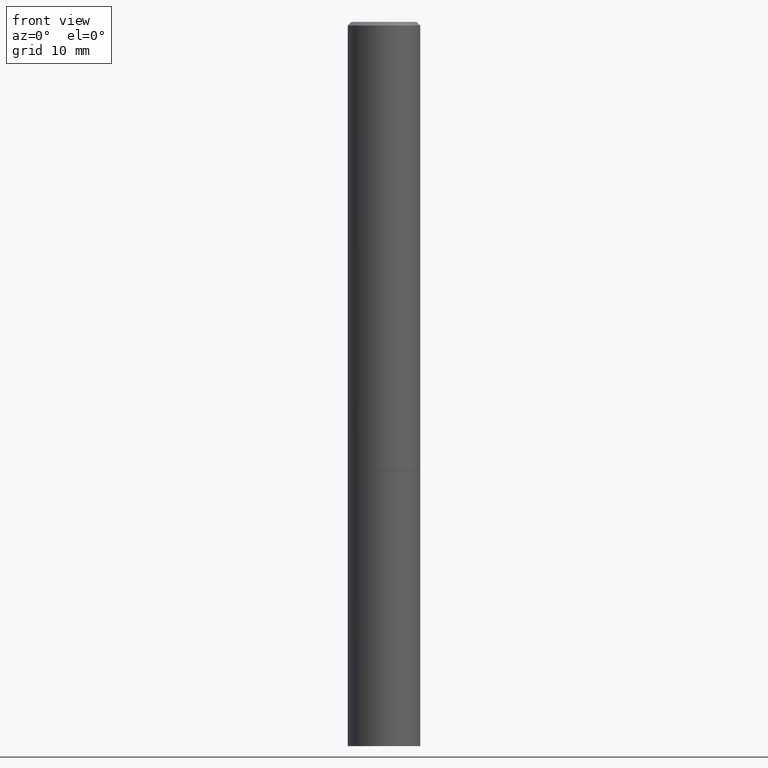
[diagram: clean part render]
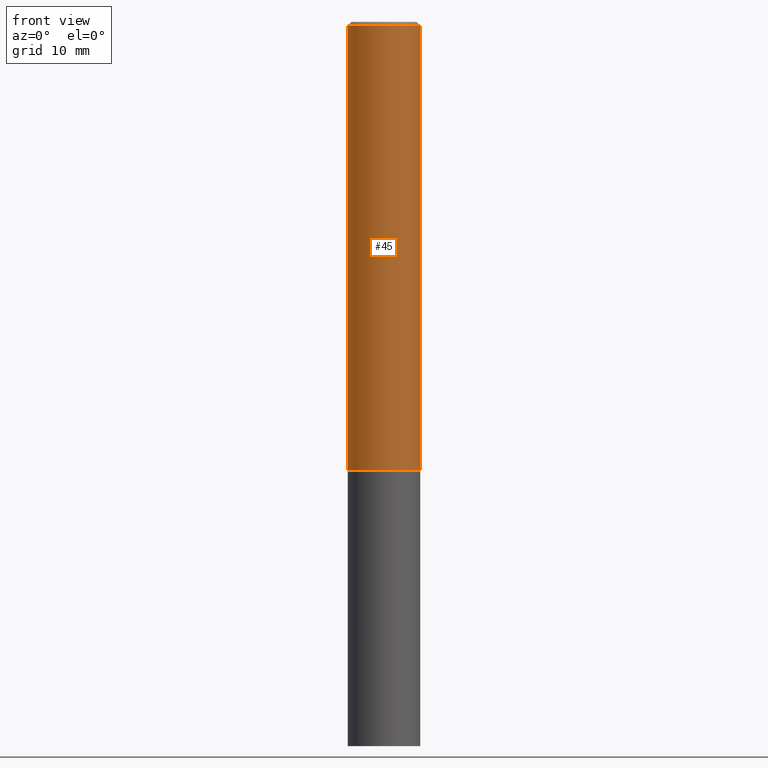
[diagram: same view with one face highlighted and labeled with its STEP entity id]
A machine part, front view. The second image highlights one B-rep face of the part: STEP entity #45.
In plain terms, the highlighted cylindrical surface (edge-blend (fillet) strip) has radius 5 mm, axis along (-0, 0, 1).
Its self-contained STEP definition (entity closure, byte-faithful):
#9 = VERTEX_POINT ( 'NONE', #83 ) ;
#14 = EDGE_CURVE ( 'NONE', #209, #23, #259, .T. ) ;
#23 = VERTEX_POINT ( 'NONE', #361 ) ;
#40 = DIRECTION ( 'NONE',  ( 1.000000000000000000, -6.982962677686266711E-15, 0.000000000000000000 ) ) ;
#43 = DIRECTION ( 'NONE',  ( -2.445468806185136597E-29, 3.491481338843145583E-15, 1.000000000000000000 ) ) ;
#45 = ADVANCED_FACE ( 'NONE', ( #255 ), #194, .T. ) ;
#76 = AXIS2_PLACEMENT_3D ( 'NONE', #229, #311, #278 ) ;
#83 = CARTESIAN_POINT ( 'NONE',  ( 0.1968500000000000527, -9.893461521745931567E-15, -2.439899999999999736 ) ) ;
#89 = LINE ( 'NONE', #147, #225 ) ;
#117 = AXIS2_PLACEMENT_3D ( 'NONE', #299, #43, #277 ) ;
#121 = ORIENTED_EDGE ( 'NONE', *, *, #285, .T. ) ;
#127 = DIRECTION ( 'NONE',  ( -2.445468806185136597E-29, 3.491481338843145583E-15, 1.000000000000000000 ) ) ;
#147 = CARTESIAN_POINT ( 'NONE',  ( 0.1968499999999998307, -1.374596203102540425E-15, 9.598753983154291049E-30 ) ) ;
#151 = ORIENTED_EDGE ( 'NONE', *, *, #226, .T. ) ;
#157 = CARTESIAN_POINT ( 'NONE',  ( 4.890937612370278413E-31, -6.982962677686297772E-17, -0.02000000000000002123 ) ) ;
#170 = ORIENTED_EDGE ( 'NONE', *, *, #334, .F. ) ;
#181 = CIRCLE ( 'NONE', #276, 0.1968499999999996364 ) ;
#190 = VECTOR ( 'NONE', #307, 39.37007874015748143 ) ;
#194 = CYLINDRICAL_SURFACE ( 'NONE', #76, 0.1968499999999998307 ) ;
#209 = VERTEX_POINT ( 'NONE', #318 ) ;
#211 = CARTESIAN_POINT ( 'NONE',  ( 0.1968499999999996364, -1.420318657638186558E-15, -0.02000000000000002123 ) ) ;
#215 = VERTEX_POINT ( 'NONE', #211 ) ;
#217 = ORIENTED_EDGE ( 'NONE', *, *, #14, .F. ) ;
#225 = VECTOR ( 'NONE', #295, 39.37007874015748143 ) ;
#226 = EDGE_CURVE ( 'NONE', #9, #215, #89, .T. ) ;
#229 = CARTESIAN_POINT ( 'NONE',  ( 0.000000000000000000, 0.000000000000000000, 0.000000000000000000 ) ) ;
#251 = CARTESIAN_POINT ( 'NONE',  ( -0.1968499999999998307, 1.398703375343756013E-15, -9.682923725166775270E-30 ) ) ;
#255 = FACE_OUTER_BOUND ( 'NONE', #317, .T. ) ;
#259 = LINE ( 'NONE', #251, #190 ) ;
#276 = AXIS2_PLACEMENT_3D ( 'NONE', #157, #127, #40 ) ;
#277 = DIRECTION ( 'NONE',  ( 1.000000000000000000, -6.982962677686266711E-15, 0.000000000000000000 ) ) ;
#278 = DIRECTION ( 'NONE',  ( 1.000000000000000000, -6.982962677686266711E-15, 4.876176775795935793E-29 ) ) ;
#285 = EDGE_CURVE ( 'NONE', #209, #9, #354, .T. ) ;
#295 = DIRECTION ( 'NONE',  ( -2.445468806185136877E-29, 3.491481338843145188E-15, 1.000000000000000000 ) ) ;
#299 = CARTESIAN_POINT ( 'NONE',  ( 5.966699340211114556E-29, -8.518865318643389958E-15, -2.439899999999999736 ) ) ;
#307 = DIRECTION ( 'NONE',  ( -2.445468806185136877E-29, 3.491481338843145188E-15, 1.000000000000000000 ) ) ;
#311 = DIRECTION ( 'NONE',  ( -2.445468806185136597E-29, 3.491481338843145583E-15, 1.000000000000000000 ) ) ;
#317 = EDGE_LOOP ( 'NONE', ( #217, #121, #151, #170 ) ) ;
#318 = CARTESIAN_POINT ( 'NONE',  ( -0.1968500000000000527, -2.895644097366364896E-15, -2.439899999999999736 ) ) ;
#334 = EDGE_CURVE ( 'NONE', #23, #215, #181, .T. ) ;
#354 = CIRCLE ( 'NONE', #117, 0.1968500000000000527 ) ;
#361 = CARTESIAN_POINT ( 'NONE',  ( -0.1968499999999996364, 1.304766576325675944E-15, -0.02000000000000002123 ) ) ;